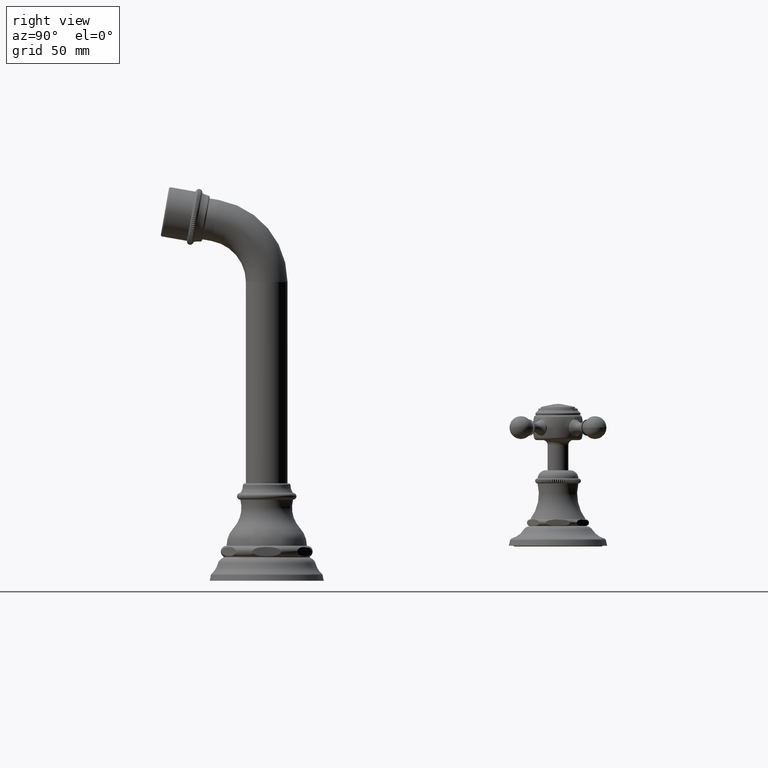
[diagram: clean part render]
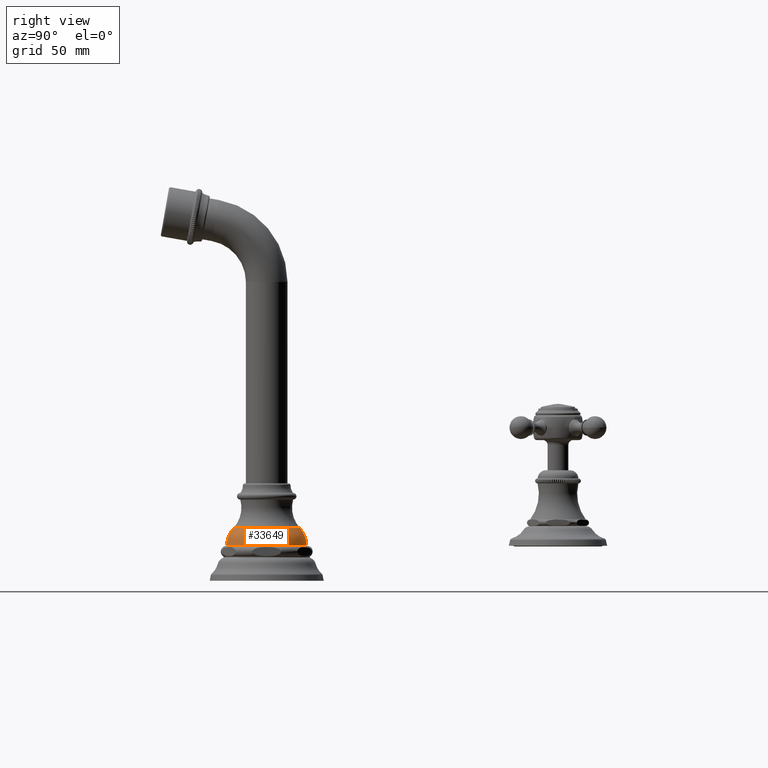
[diagram: same view with one face highlighted and labeled with its STEP entity id]
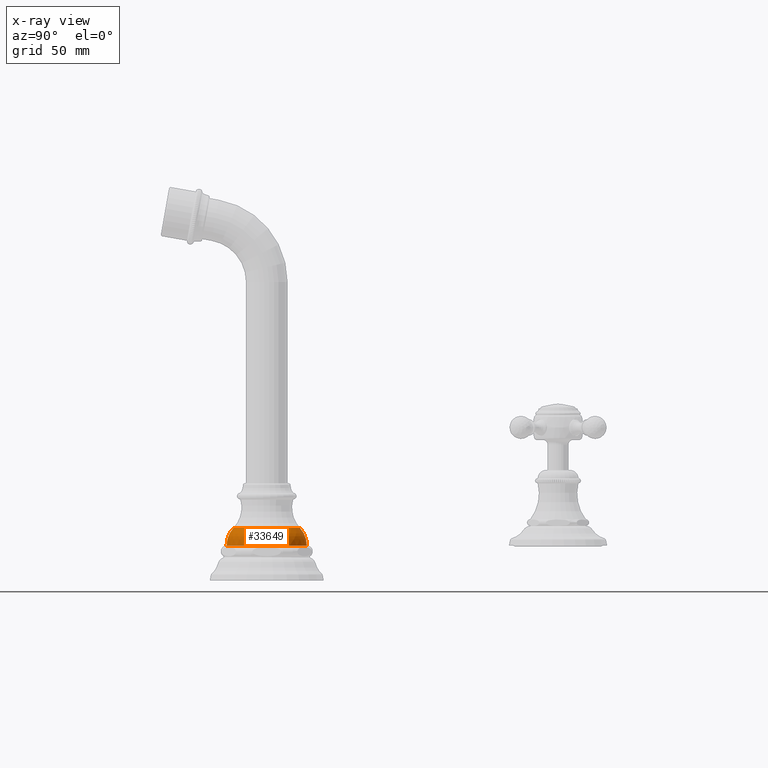
[diagram: x-ray of the same camera — body ghosted, the highlighted face saturated]
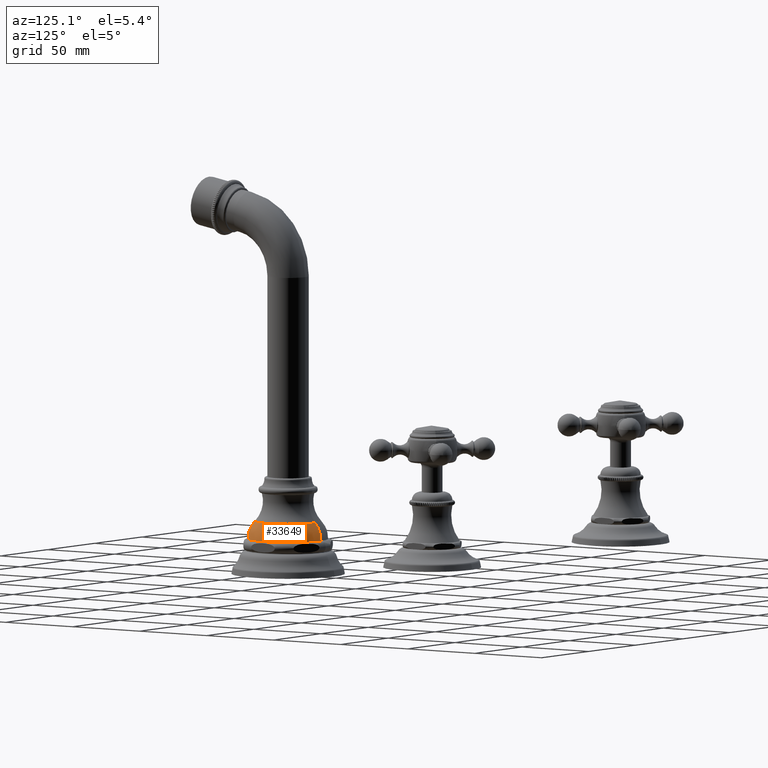
[diagram: same view with one face highlighted and labeled with its STEP entity id]
A machine part, right view. The second image highlights one B-rep face of the part: STEP entity #33649.
The next image is the same camera in x-ray: the body ghosted, the highlighted face saturated — about 0% of this face is hidden behind the body in this view.
A second angle (auxiliary view) of the same face is appended — the face is thin or edge-on in the first view.
In plain terms, the highlighted face is a freeform B-spline surface patch.
Its self-contained STEP definition (entity closure, byte-faithful):
#30825=CARTESIAN_POINT('',(0.E0,0.E0,4.268135396905E-1));
#30826=DIRECTION('',(0.E0,0.E0,1.E0));
#30827=DIRECTION('',(0.E0,-1.E0,0.E0));
#30828=AXIS2_PLACEMENT_3D('',#30825,#30826,#30827);
#30833=CARTESIAN_POINT('',(0.E0,0.E0,0.E0));
#30834=DIRECTION('',(0.E0,0.E0,-1.E0));
#30835=DIRECTION('',(0.E0,1.E0,0.E0));
#30836=AXIS2_PLACEMENT_3D('',#30833,#30834,#30835);
#30841=CARTESIAN_POINT('',(0.E0,-3.35E-1,0.E0));
#30842=DIRECTION('',(-1.E0,0.E0,0.E0));
#30843=DIRECTION('',(0.E0,-1.E0,0.E0));
#30844=AXIS2_PLACEMENT_3D('',#30841,#30842,#30843);
#30849=CARTESIAN_POINT('',(0.E0,3.35E-1,0.E0));
#30850=DIRECTION('',(1.E0,0.E0,0.E0));
#30851=DIRECTION('',(0.E0,1.E0,0.E0));
#30852=AXIS2_PLACEMENT_3D('',#30849,#30850,#30851);
#32310=CARTESIAN_POINT('',(0.E0,-7.983899031451E-1,4.268135396905E-1));
#32312=VERTEX_POINT('',#32310);
#32316=CARTESIAN_POINT('',(0.E0,7.983899031451E-1,4.268135396905E-1));
#32318=VERTEX_POINT('',#32316);
#32602=CARTESIAN_POINT('',(0.E0,-9.65E-1,0.E0));
#32603=CARTESIAN_POINT('',(0.E0,9.65E-1,0.E0));
#32604=VERTEX_POINT('',#32602);
#32605=VERTEX_POINT('',#32603);
#33611=CARTESIAN_POINT('',(-4.972914702564E-2,7.904221574462E-1,
4.336643256993E-1));
#33612=CARTESIAN_POINT('',(-5.693678921517E-2,9.049843494462E-1,
3.127027735890E-1));
#33613=CARTESIAN_POINT('',(-6.074433782523E-2,9.655036015740E-1,
1.573610028826E-1));
#33614=CARTESIAN_POINT('',(-6.058846813993E-2,9.630261238713E-1,
-9.378257160122E-3));
#33615=CARTESIAN_POINT('',(4.366955399397E-1,8.210254047706E-1,
4.336643256993E-1));
#33616=CARTESIAN_POINT('',(4.999893100103E-1,9.400231696639E-1,
3.127027735890E-1));
#33617=CARTESIAN_POINT('',(5.334252242692E-1,1.002885581865E0,
1.573610028826E-1));
#33618=CARTESIAN_POINT('',(5.320564576514E-1,1.000312182177E0,
-9.378257160122E-3));
#33619=CARTESIAN_POINT('',(7.919849588507E-1,4.873864327575E-1,
4.336643256993E-1));
#33620=CARTESIAN_POINT('',(9.067736601318E-1,5.580272385115E-1,
3.127027735890E-1));
#33621=CARTESIAN_POINT('',(9.674125692952E-1,5.953443381523E-1,
1.573610028826E-1));
#33622=CARTESIAN_POINT('',(9.649301931902E-1,5.938166873793E-1,
-9.378257160122E-3));
#33623=CARTESIAN_POINT('',(7.919849588507E-1,0.E0,4.336643256993E-1));
#33624=CARTESIAN_POINT('',(9.067736601318E-1,0.E0,3.127027735890E-1));
#33625=CARTESIAN_POINT('',(9.674125692952E-1,0.E0,1.573610028826E-1));
#33626=CARTESIAN_POINT('',(9.649301931902E-1,0.E0,-9.378257160122E-3));
#33627=CARTESIAN_POINT('',(7.919849588507E-1,-4.873864327575E-1,
4.336643256993E-1));
#33628=CARTESIAN_POINT('',(9.067736601318E-1,-5.580272385115E-1,
3.127027735890E-1));
#33629=CARTESIAN_POINT('',(9.674125692952E-1,-5.953443381523E-1,
1.573610028826E-1));
#33630=CARTESIAN_POINT('',(9.649301931902E-1,-5.938166873793E-1,
-9.378257160122E-3));
#33631=CARTESIAN_POINT('',(4.366955399397E-1,-8.210254047706E-1,
4.336643256993E-1));
#33632=CARTESIAN_POINT('',(4.999893100103E-1,-9.400231696639E-1,
3.127027735890E-1));
#33633=CARTESIAN_POINT('',(5.334252242692E-1,-1.002885581865E0,
1.573610028826E-1));
#33634=CARTESIAN_POINT('',(5.320564576514E-1,-1.000312182177E0,
-9.378257160122E-3));
#33635=CARTESIAN_POINT('',(-4.972914702564E-2,-7.904221574462E-1,
4.336643256993E-1));
#33636=CARTESIAN_POINT('',(-5.693678921517E-2,-9.049843494462E-1,
3.127027735890E-1));
#33637=CARTESIAN_POINT('',(-6.074433782523E-2,-9.655036015740E-1,
1.573610028826E-1));
#33638=CARTESIAN_POINT('',(-6.058846813993E-2,-9.630261238713E-1,
-9.378257160122E-3));
#33639=(BOUNDED_SURFACE()B_SPLINE_SURFACE(3,3,((#33611,#33612,#33613,#33614),(
#33615,#33616,#33617,#33618),(#33619,#33620,#33621,#33622),(#33623,#33624,
#33625,#33626),(#33627,#33628,#33629,#33630),(#33631,#33632,#33633,#33634),(
#33635,#33636,#33637,#33638)),.UNSPECIFIED.,.F.,.F.,.F.)B_SPLINE_SURFACE_WITH_KNOTS((4,3,4),(4,4),(0.E0,1.E0,2.E0),(0.E0,1.E0),.UNSPECIFIED.)GEOMETRIC_REPRESENTATION_ITEM()RATIONAL_B_SPLINE_SURFACE(((1.232863085810E0,1.172062614722E0,
1.172062614722E0,1.232863085810E0),(9.735896002015E-1,9.255755854910E-1,
9.255755854910E-1,9.735896002015E-1),(9.735896002015E-1,9.255755854910E-1,
9.255755854910E-1,9.735896002015E-1),(1.232863085810E0,1.172062614722E0,
1.172062614722E0,1.232863085810E0),(9.735896002015E-1,9.255755854910E-1,
9.255755854910E-1,9.735896002015E-1),(9.735896002015E-1,9.255755854910E-1,
9.255755854910E-1,9.735896002015E-1),(1.232863085810E0,1.172062614722E0,
1.172062614722E0,1.232863085810E0)))REPRESENTATION_ITEM('')SURFACE());
#33641=ORIENTED_EDGE('',*,*,#33640,.T.);
#33643=ORIENTED_EDGE('',*,*,#33642,.T.);
#33644=ORIENTED_EDGE('',*,*,#33599,.T.);
#33646=ORIENTED_EDGE('',*,*,#33645,.F.);
#33647=EDGE_LOOP('',(#33641,#33643,#33644,#33646));
#33648=FACE_OUTER_BOUND('',#33647,.F.);
#30829=CIRCLE('',#30828,7.983899031451E-1);
#30837=CIRCLE('',#30836,9.65E-1);
#30845=CIRCLE('',#30844,6.3E-1);
#30853=CIRCLE('',#30852,6.3E-1);
#33599=EDGE_CURVE('',#32312,#32318,#30829,.T.);
#33640=EDGE_CURVE('',#32605,#32604,#30837,.T.);
#33642=EDGE_CURVE('',#32604,#32312,#30845,.T.);
#33645=EDGE_CURVE('',#32605,#32318,#30853,.T.);
#33649=ADVANCED_FACE('',(#33648),#33639,.T.);